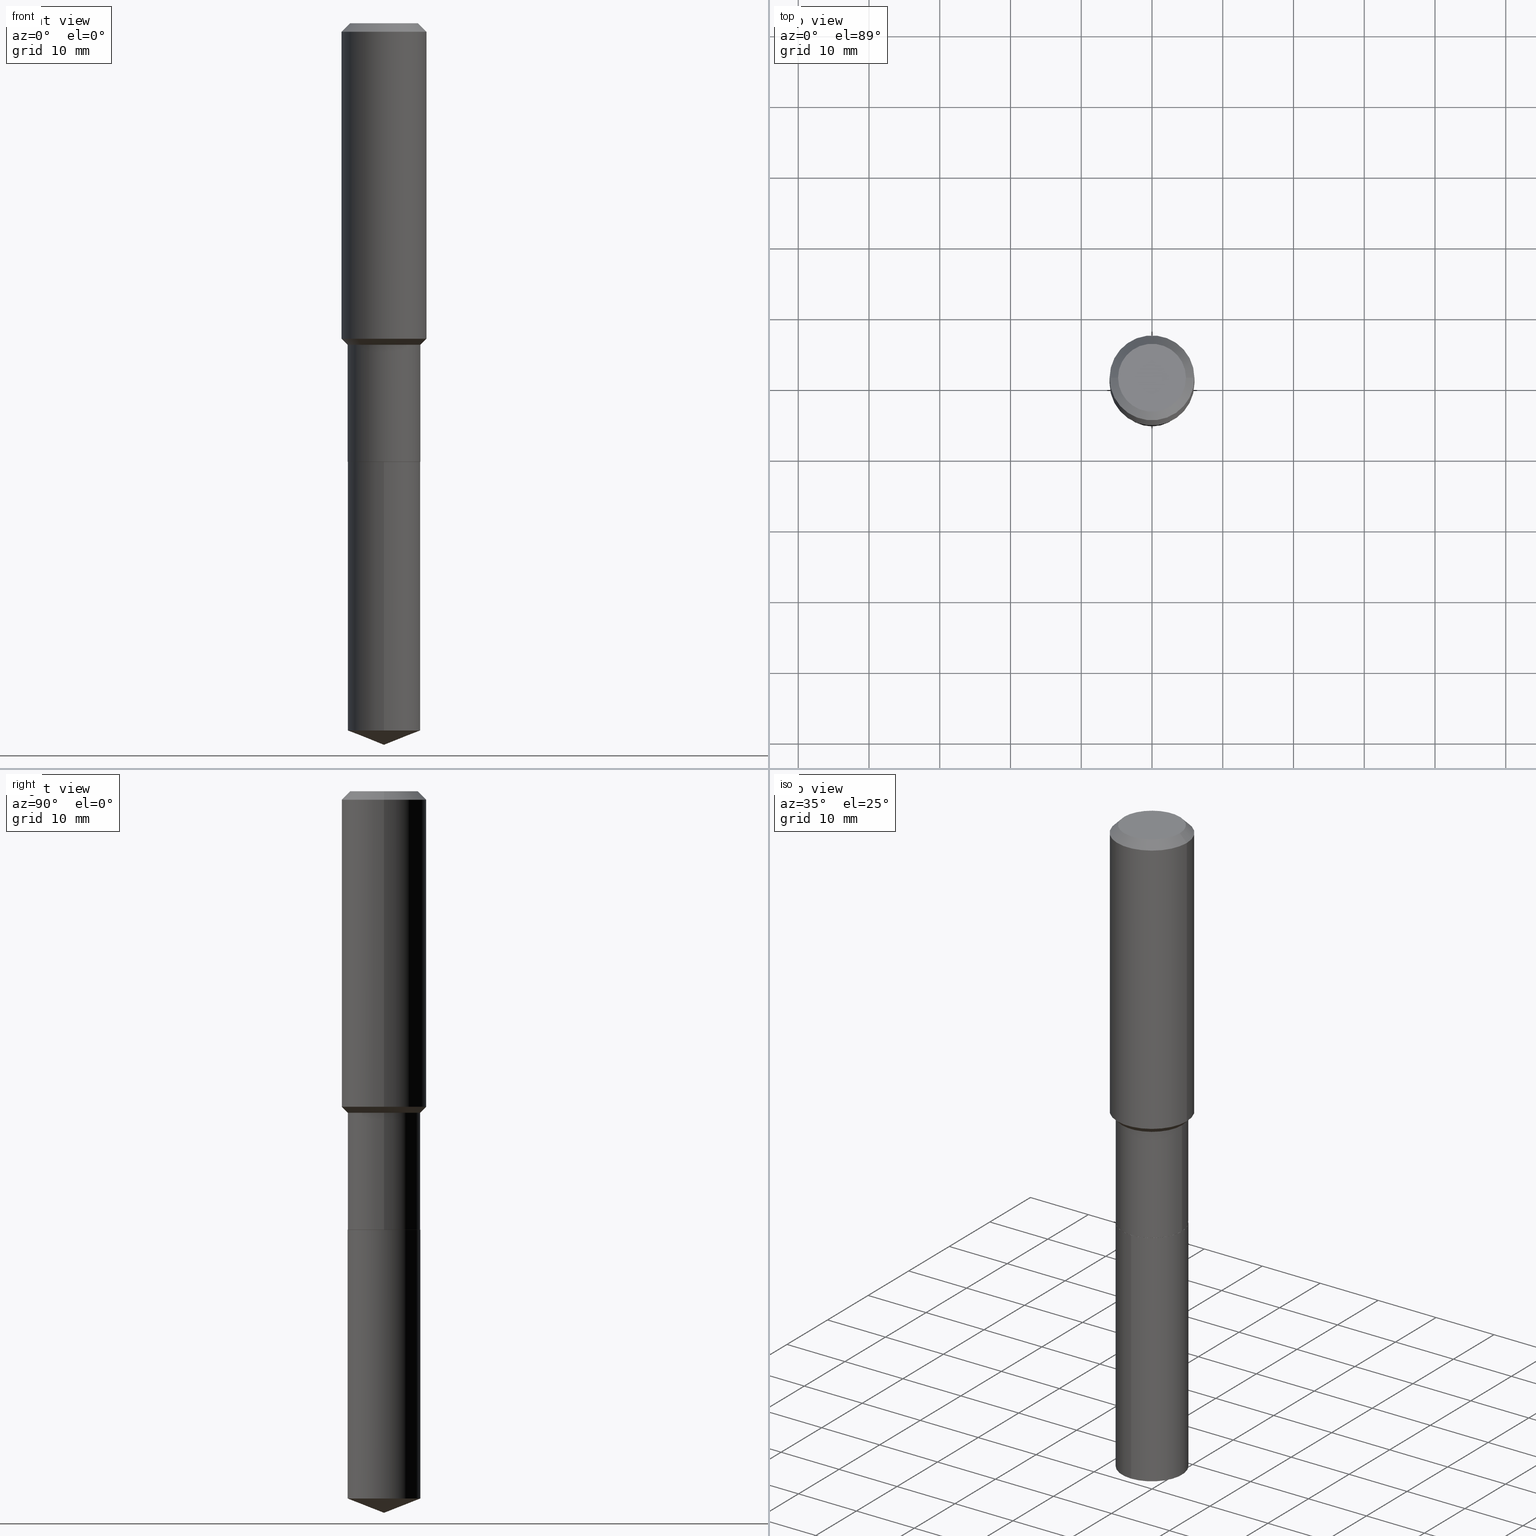
[diagram: canonical four-view strip — front | top / right | iso, engineering-drawing reading convention]
A machine part, canonical four-view strip (front | top / right | iso — engineering-drawing reading convention). The complete STEP part file that produces these views, byte-faithful:
ISO-10303-21;
HEADER;
FILE_DESCRIPTION (( 'STEP AP203' ),
    '1' );
FILE_NAME ('66473.STEP',
    '2024-04-24T23:21:21',
    ( '' ),
    ( '' ),
    'SwSTEP 2.0',
    'SolidWorks 2023',
    '' );
FILE_SCHEMA (( 'CONFIG_CONTROL_DESIGN' ));
ENDSEC;

DATA;
#1 = DIRECTION ( 'NONE',  ( -6.982962677686266711E-15, -1.000000000000000000, 3.498627837350051949E-15 ) ) ;
#2 = PRODUCT_DEFINITION ( 'UNKNOWN', '', #284, #251 ) ;
#3 = DIRECTION ( 'NONE',  ( -2.445399602320894408E-29, 3.491580442715579660E-15, 1.000000000000000000 ) ) ;
#4 = ORIENTED_EDGE ( 'NONE', *, *, #154, .F. ) ;
#5 = VERTEX_POINT ( 'NONE', #440 ) ;
#6 = APPROVAL_STATUS ( 'not_yet_approved' ) ;
#7 = LINE ( 'NONE', #458, #246 ) ;
#8 = ORIENTED_EDGE ( 'NONE', *, *, #303, .T. ) ;
#9 = ORIENTED_EDGE ( 'NONE', *, *, #351, .F. ) ;
#10 = CIRCLE ( 'NONE', #313, 0.2027500000000000135 ) ;
#11 = DIRECTION ( 'NONE',  ( -2.445468806185136597E-29, 3.491481338843145583E-15, 1.000000000000000000 ) ) ;
#12 = ORIENTED_EDGE ( 'NONE', *, *, #97, .F. ) ;
#13 = CARTESIAN_POINT ( 'NONE',  ( -9.427742298522546243E-47, 1.346031739168365344E-32, 3.855188123715862256E-18 ) ) ;
#14 = ORIENTED_EDGE ( 'NONE', *, *, #303, .F. ) ;
#15 = EDGE_CURVE ( 'NONE', #447, #43, #437, .T. ) ;
#16 = DIRECTION ( 'NONE',  ( -2.445399602320894408E-29, 3.491580442715579660E-15, 1.000000000000000000 ) ) ;
#17 = VERTEX_POINT ( 'NONE', #235 ) ;
#18 = CIRCLE ( 'NONE', #428, 0.2027500000000000135 ) ;
#19 = LOCAL_TIME ( 19, 21, 21.00000000000000000, #396 ) ;
#20 = CARTESIAN_POINT ( 'NONE',  ( 1.155239464041865506E-30, -1.649375784469511859E-16, -0.04724000000000028177 ) ) ;
#21 = PERSON_AND_ORGANIZATION ( #263, #125 ) ;
#22 = ORIENTED_EDGE ( 'NONE', *, *, #31, .F. ) ;
#23 = DATE_TIME_ROLE ( 'classification_date' ) ;
#24 = FACE_OUTER_BOUND ( 'NONE', #423, .T. ) ;
#25 = APPROVAL_STATUS ( 'not_yet_approved' ) ;
#26 = DIRECTION ( 'NONE',  ( -2.445468806185136597E-29, 3.491481338843145583E-15, 1.000000000000000000 ) ) ;
#27 = ADVANCED_FACE ( 'NONE', ( #205 ), #392, .T. ) ;
#28 = CARTESIAN_POINT ( 'NONE',  ( -1.415795682900794232E-15, -0.2027500000000137803, -3.935834651069069601 ) ) ;
#29 = CARTESIAN_POINT ( 'NONE',  ( 0.2362000000000001043, -1.649375784469496920E-15, 1.151752954443000508E-29 ) ) ;
#30 = APPLICATION_PROTOCOL_DEFINITION ( 'international standard', 'config_control_design', 1994, #383 ) ;
#31 = EDGE_CURVE ( 'NONE', #262, #224, #364, .T. ) ;
#32 = CARTESIAN_POINT ( 'NONE',  ( -4.713871149261273121E-47, 6.730158695841826722E-33, 1.927594061857931128E-18 ) ) ;
#33 = CIRCLE ( 'NONE', #373, 0.2027499999999999303 ) ;
#34 = DIRECTION ( 'NONE',  ( 1.000000000000000000, -6.982962677686266711E-15, 4.876176775795935793E-29 ) ) ;
#35 = CARTESIAN_POINT ( 'NONE',  ( 5.969144809017299038E-29, -8.522356799982232966E-15, -2.440900000000000070 ) ) ;
#36 = VERTEX_POINT ( 'NONE', #360 ) ;
#37 = CARTESIAN_POINT ( 'NONE',  ( 9.819991183040015308E-29, -1.402113958381295422E-14, -4.015699999999999825 ) ) ;
#38 = CONICAL_SURFACE ( 'NONE', #377, 0.2027499999999999303, 0.7853981633974498333 ) ;
#39 = DIRECTION ( 'NONE',  ( 1.000000000000000000, -6.982962677686266711E-15, 4.876176775795935793E-29 ) ) ;
#40 = CIRCLE ( 'NONE', #289, 0.2361999999999999933 ) ;
#41 = EDGE_LOOP ( 'NONE', ( #187, #389 ) ) ;
#42 = VECTOR ( 'NONE', #480, 39.37007874015748143 ) ;
#43 = VERTEX_POINT ( 'NONE', #134 ) ;
#44 = CC_DESIGN_DATE_AND_TIME_ASSIGNMENT ( #438, #23, ( #238 ) ) ;
#45 = CARTESIAN_POINT ( 'NONE',  ( 1.440625396753699464E-15, 0.2027499999999914648, -2.440900000000000514 ) ) ;
#46 = ORIENTED_EDGE ( 'NONE', *, *, #414, .T. ) ;
#47 = DIRECTION ( 'NONE',  ( -2.445468806185136597E-29, 3.491481338843145583E-15, 1.000000000000000000 ) ) ;
#48 = EDGE_CURVE ( 'NONE', #36, #5, #62, .T. ) ;
#49 = EDGE_LOOP ( 'NONE', ( #142, #79, #344, #181 ) ) ;
#50 = VECTOR ( 'NONE', #51, 39.37007874015748143 ) ;
#51 = DIRECTION ( 'NONE',  ( -2.445468806185136877E-29, 3.491481338843145188E-15, 1.000000000000000000 ) ) ;
#52 = ORIENTED_EDGE ( 'NONE', *, *, #222, .F. ) ;
#53 = PERSON_AND_ORGANIZATION ( #263, #125 ) ;
#54 = ORIENTED_EDGE ( 'NONE', *, *, #398, .T. ) ;
#55 = DIRECTION ( 'NONE',  ( -1.000000000000000000, 6.982962677686266711E-15, 0.000000000000000000 ) ) ;
#56 = CALENDAR_DATE ( 2024, 24, 4 ) ;
#57 = AXIS2_PLACEMENT_3D ( 'NONE', #13, #157, #304 ) ;
#58 = CARTESIAN_POINT ( 'NONE',  ( 4.376166428668302424E-29, -6.248005855859809764E-15, -1.789500000000000091 ) ) ;
#59 = PERSON_AND_ORGANIZATION_ROLE ( 'creator' ) ;
#60 = DIRECTION ( 'NONE',  ( 6.982962677686265922E-15, 1.000000000000000000, -3.491580442715579660E-15 ) ) ;
#61 = CARTESIAN_POINT ( 'NONE',  ( 5.969144809017299038E-29, -8.522356799982232966E-15, -2.440900000000000070 ) ) ;
#62 = LINE ( 'NONE', #391, #417 ) ;
#63 = AXIS2_PLACEMENT_3D ( 'NONE', #58, #229, #395 ) ;
#64 = CARTESIAN_POINT ( 'NONE',  ( -0.1889600000000000168, 1.401969416799070942E-15, 3.855188123706346622E-18 ) ) ;
#65 = VECTOR ( 'NONE', #481, 39.37007874015748143 ) ;
#66 = CARTESIAN_POINT ( 'NONE',  ( 4.376166428668302424E-29, -6.248005855859809764E-15, -1.789500000000000091 ) ) ;
#67 = APPROVAL ( #473, 'UNSPECIFIED' ) ;
#68 = DIRECTION ( 'NONE',  ( -2.445468806185136877E-29, 3.491481338843145188E-15, 1.000000000000000000 ) ) ;
#69 = EDGE_LOOP ( 'NONE', ( #326, #305, #465, #219 ) ) ;
#70 = ADVANCED_FACE ( 'NONE', ( #89 ), #308, .T. ) ;
#71 = DIRECTION ( 'NONE',  ( -2.445468806185136597E-29, 3.491481338843145583E-15, 1.000000000000000000 ) ) ;
#72 = APPROVAL ( #25, 'UNSPECIFIED' ) ;
#73 = AXIS2_PLACEMENT_3D ( 'NONE', #108, #327, #451 ) ;
#74 = CARTESIAN_POINT ( 'NONE',  ( 9.624857410237329995E-29, -1.374204139079284001E-14, -3.935834651069070045 ) ) ;
#75 = CARTESIAN_POINT ( 'NONE',  ( -0.2362000000000001043, 1.678301941865357380E-15, -1.161852468318209317E-29 ) ) ;
#76 = PLANE ( 'NONE',  #374 ) ;
#77 = ADVANCED_FACE ( 'NONE', ( #272 ), #123, .T. ) ;
#78 = VECTOR ( 'NONE', #87, 39.37007874015748143 ) ;
#79 = ORIENTED_EDGE ( 'NONE', *, *, #484, .T. ) ;
#80 = ADVANCED_FACE ( 'NONE', ( #276 ), #95, .F. ) ;
#81 = APPLICATION_CONTEXT ( 'configuration controlled 3d designs of mechanical parts and assemblies' ) ;
#82 = ORIENTED_EDGE ( 'NONE', *, *, #342, .F. ) ;
#83 = ORIENTED_EDGE ( 'NONE', *, *, #375, .F. ) ;
#84 = DIRECTION ( 'NONE',  ( 1.000000000000000000, -6.982962677686266711E-15, 0.000000000000000000 ) ) ;
#85 = ORIENTED_EDGE ( 'NONE', *, *, #355, .T. ) ;
#86 = VECTOR ( 'NONE', #441, 39.37007874015748143 ) ;
#87 = DIRECTION ( 'NONE',  ( -2.445399602320894689E-29, 3.491580442715579660E-15, 1.000000000000000000 ) ) ;
#88 = ORIENTED_EDGE ( 'NONE', *, *, #31, .T. ) ;
#89 = FACE_OUTER_BOUND ( 'NONE', #405, .T. ) ;
#90 = DIRECTION ( 'NONE',  ( 1.000000000000000000, -6.982962677686266711E-15, 4.876176775795935793E-29 ) ) ;
#91 = CONICAL_SURFACE ( 'NONE', #144, 0.2361999999999999933, 0.7853981633974452814 ) ;
#92 = AXIS2_PLACEMENT_3D ( 'NONE', #257, #11, #84 ) ;
#93 = LOCAL_TIME ( 19, 21, 21.00000000000000000, #170 ) ;
#94 = PERSON_AND_ORGANIZATION ( #263, #125 ) ;
#95 = PLANE ( 'NONE',  #471 ) ;
#96 = DIRECTION ( 'NONE',  ( 1.000000000000000000, -6.982962677686266711E-15, 0.000000000000000000 ) ) ;
#97 = EDGE_CURVE ( 'NONE', #323, #372, #130, .T. ) ;
#98 = FACE_OUTER_BOUND ( 'NONE', #49, .T. ) ;
#99 = CARTESIAN_POINT ( 'NONE',  ( 0.2361999999999999933, -1.785387205520586782E-15, -0.04724000000000028177 ) ) ;
#100 = AXIS2_PLACEMENT_3D ( 'NONE', #448, #3, #1 ) ;
#101 = PLANE ( 'NONE',  #231 ) ;
#102 = EDGE_LOOP ( 'NONE', ( #4, #104 ) ) ;
#103 = LINE ( 'NONE', #450, #478 ) ;
#104 = ORIENTED_EDGE ( 'NONE', *, *, #390, .F. ) ;
#105 = DIRECTION ( 'NONE',  ( 1.000000000000000000, -6.982962677686269866E-15, 0.000000000000000000 ) ) ;
#106 = CYLINDRICAL_SURFACE ( 'NONE', #114, 0.2027500000000000135 ) ;
#107 = ORIENTED_EDGE ( 'NONE', *, *, #97, .T. ) ;
#108 = CARTESIAN_POINT ( 'NONE',  ( -9.427742298522546243E-47, 1.346031739168365344E-32, 3.855188123715862256E-18 ) ) ;
#109 = ADVANCED_FACE ( 'NONE', ( #24 ), #208, .T. ) ;
#110 = ORIENTED_EDGE ( 'NONE', *, *, #431, .T. ) ;
#111 = LINE ( 'NONE', #261, #139 ) ;
#112 = EDGE_CURVE ( 'NONE', #194, #463, #402, .T. ) ;
#113 = ORIENTED_EDGE ( 'NONE', *, *, #300, .T. ) ;
#114 = AXIS2_PLACEMENT_3D ( 'NONE', #213, #249, #412 ) ;
#115 = ORIENTED_EDGE ( 'NONE', *, *, #182, .F. ) ;
#116 = PERSON_AND_ORGANIZATION ( #263, #125 ) ;
#117 = PRODUCT ( '66473', '66473', '', ( #361 ) ) ;
#118 = DIRECTION ( 'NONE',  ( -2.445468806185136597E-29, 3.491481338843145583E-15, 1.000000000000000000 ) ) ;
#119 = ORIENTED_EDGE ( 'NONE', *, *, #200, .T. ) ;
#120 = CC_DESIGN_PERSON_AND_ORGANIZATION_ASSIGNMENT ( #21, #296, ( #284 ) ) ;
#121 = ORIENTED_EDGE ( 'NONE', *, *, #286, .T. ) ;
#122 = CARTESIAN_POINT ( 'NONE',  ( -0.2027499999999999303, -4.807380459106207527E-15, -1.789500000000000091 ) ) ;
#123 = CONICAL_SURFACE ( 'NONE', #184, 0.2361999999999999933, 0.7853981633974452814 ) ;
#124 = EDGE_LOOP ( 'NONE', ( #113, #341, #330, #335 ) ) ;
#125 = ORGANIZATION ( 'UNSPECIFIED', 'UNSPECIFIED', '' ) ;
#126 = DIRECTION ( 'NONE',  ( 2.445468806185136597E-29, -3.491481338843145583E-15, -1.000000000000000000 ) ) ;
#127 = COORDINATED_UNIVERSAL_TIME_OFFSET ( 5, 0, .BEHIND. ) ;
#128 = CARTESIAN_POINT ( 'NONE',  ( 5.969144809017299038E-29, -8.522356799982232966E-15, -2.440900000000000070 ) ) ;
#129 = PERSON_AND_ORGANIZATION_ROLE ( 'classification_officer' ) ;
#130 = LINE ( 'NONE', #230, #239 ) ;
#131 = AXIS2_PLACEMENT_3D ( 'NONE', #320, #282, #445 ) ;
#132 = EDGE_CURVE ( 'NONE', #382, #447, #33, .T. ) ;
#133 = LENGTH_MEASURE_WITH_UNIT ( LENGTH_MEASURE( 0.02539999999999999897 ), #407 );
#134 = CARTESIAN_POINT ( 'NONE',  ( 0.2362000000000002153, -7.780591589545004150E-15, -1.756049999999999889 ) ) ;
#135 = DATE_AND_TIME ( #316, #93 ) ;
#136 = DIMENSIONAL_EXPONENTS ( 1.000000000000000000, 0.000000000000000000, 0.000000000000000000, 0.000000000000000000, 0.000000000000000000, 0.000000000000000000, 0.000000000000000000 ) ;
#137 = CARTESIAN_POINT ( 'NONE',  ( 5.969144809017299038E-29, -8.522356799982232966E-15, -2.440900000000000070 ) ) ;
#138 = CARTESIAN_POINT ( 'NONE',  ( 5.969144809017299038E-29, -8.522356799982232966E-15, -2.440900000000000070 ) ) ;
#139 = VECTOR ( 'NONE', #254, 39.37007874015748143 ) ;
#140 = CARTESIAN_POINT ( 'NONE',  ( 5.969144809017299038E-29, -8.522356799982232966E-15, -2.440900000000000070 ) ) ;
#141 = CARTESIAN_POINT ( 'NONE',  ( 4.376166428668302424E-29, -6.248005855859809764E-15, -1.789500000000000091 ) ) ;
#142 = ORIENTED_EDGE ( 'NONE', *, *, #431, .F. ) ;
#143 = LINE ( 'NONE', #75, #162 ) ;
#144 = AXIS2_PLACEMENT_3D ( 'NONE', #352, #126, #474 ) ;
#145 = ADVANCED_FACE ( 'NONE', ( #399 ), #38, .T. ) ;
#146 = AXIS2_PLACEMENT_3D ( 'NONE', #456, #340, #294 ) ;
#147 = LOCAL_TIME ( 19, 21, 21.00000000000000000, #127 ) ;
#148 = DIRECTION ( 'NONE',  ( 1.000000000000000000, -6.982962677686264344E-15, 0.000000000000000000 ) ) ;
#149 = EDGE_LOOP ( 'NONE', ( #421, #14, #121, #88 ) ) ;
#150 = SECURITY_CLASSIFICATION_LEVEL ( 'unclassified' ) ;
#151 = LINE ( 'NONE', #462, #202 ) ;
#152 = AXIS2_PLACEMENT_3D ( 'NONE', #140, #177, #319 ) ;
#153 = VERTEX_POINT ( 'NONE', #317 ) ;
#154 = EDGE_CURVE ( 'NONE', #194, #36, #306, .T. ) ;
#155 = CARTESIAN_POINT ( 'NONE',  ( 0.2027499999999999858, -1.415795682900890473E-15, 9.886448412926258951E-30 ) ) ;
#156 = ORIENTED_EDGE ( 'NONE', *, *, #384, .T. ) ;
#157 = DIRECTION ( 'NONE',  ( -2.445468806185136597E-29, 3.491481338843145583E-15, 1.000000000000000000 ) ) ;
#158 = ORIENTED_EDGE ( 'NONE', *, *, #112, .F. ) ;
#159 = ADVANCED_FACE ( 'NONE', ( #98 ), #91, .T. ) ;
#160 = LINE ( 'NONE', #99, #65 ) ;
#161 = AXIS2_PLACEMENT_3D ( 'NONE', #137, #472, #279 ) ;
#162 = VECTOR ( 'NONE', #68, 39.37007874015748143 ) ;
#163 = LOCAL_TIME ( 19, 21, 21.00000000000000000, #394 ) ;
#164 = APPROVAL_ROLE ( '' ) ;
#165 = DIRECTION ( 'NONE',  ( 0.7071067811865486830, -2.468850131082268893E-15, 0.7071067811865464625 ) ) ;
#166 = DATE_AND_TIME ( #185, #147 ) ;
#167 = CARTESIAN_POINT ( 'NONE',  ( 1.155239464041865506E-30, -1.649375784469511859E-16, -0.04724000000000028177 ) ) ;
#168 = SHAPE_DEFINITION_REPRESENTATION ( #207, #301 ) ;
#169 = CARTESIAN_POINT ( 'NONE',  ( 0.000000000000000000, 0.000000000000000000, 0.000000000000000000 ) ) ;
#170 = COORDINATED_UNIVERSAL_TIME_OFFSET ( 5, 0, .BEHIND. ) ;
#171 = DIRECTION ( 'NONE',  ( 1.000000000000000000, -6.982962677686269866E-15, 0.000000000000000000 ) ) ;
#172 = DIRECTION ( 'NONE',  ( -2.445468806185136597E-29, 3.491481338843145583E-15, 1.000000000000000000 ) ) ;
#173 =( CONVERSION_BASED_UNIT ( 'INCH', #133 ) LENGTH_UNIT ( ) NAMED_UNIT ( #136 ) );
#174 = ADVANCED_FACE ( 'NONE', ( #270 ), #433, .T. ) ;
#175 = CARTESIAN_POINT ( 'NONE',  ( -1.415795682900830717E-15, -0.2027500000000085345, -2.440899999999999181 ) ) ;
#176 = APPROVAL ( #6, 'UNSPECIFIED' ) ;
#177 = DIRECTION ( 'NONE',  ( -2.445399602320894408E-29, 3.491580442715579660E-15, 1.000000000000000000 ) ) ;
#178 = CARTESIAN_POINT ( 'NONE',  ( 1.155239464041865506E-30, -1.649375784469511859E-16, -0.04724000000000028177 ) ) ;
#179 = ORIENTED_EDGE ( 'NONE', *, *, #359, .F. ) ;
#180 = DIRECTION ( 'NONE',  ( -2.445468806185136597E-29, 3.491481338843145583E-15, 1.000000000000000000 ) ) ;
#181 = ORIENTED_EDGE ( 'NONE', *, *, #286, .F. ) ;
#182 = EDGE_CURVE ( 'NONE', #43, #224, #212, .T. ) ;
#183 = CIRCLE ( 'NONE', #479, 0.2027499999999999303 ) ;
#184 = AXIS2_PLACEMENT_3D ( 'NONE', #20, #210, #55 ) ;
#185 = CALENDAR_DATE ( 2024, 24, 4 ) ;
#186 = DIRECTION ( 'NONE',  ( 1.000000000000000000, -6.982962677686264344E-15, 0.000000000000000000 ) ) ;
#187 = ORIENTED_EDGE ( 'NONE', *, *, #278, .T. ) ;
#188 = APPROVAL_DATE_TIME ( #166, #67 ) ;
#189 = CARTESIAN_POINT ( 'NONE',  ( 0.000000000000000000, 0.000000000000000000, 0.000000000000000000 ) ) ;
#190 = ADVANCED_FACE ( 'NONE', ( #362 ), #460, .T. ) ;
#191 = ORIENTED_EDGE ( 'NONE', *, *, #300, .F. ) ;
#192 = CARTESIAN_POINT ( 'NONE',  ( 1.440625396753662585E-15, 0.2027499999999914648, -2.440900000000000514 ) ) ;
#193 = CIRCLE ( 'NONE', #152, 0.2027500000000000135 ) ;
#194 = VERTEX_POINT ( 'NONE', #215 ) ;
#195 = DIRECTION ( 'NONE',  ( 1.000000000000000000, -6.982962677686266711E-15, 0.000000000000000000 ) ) ;
#196 = ORIENTED_EDGE ( 'NONE', *, *, #267, .F. ) ;
#197 = APPROVAL_ROLE ( '' ) ;
#198 = ORIENTED_EDGE ( 'NONE', *, *, #359, .T. ) ;
#199 = APPROVAL_ROLE ( '' ) ;
#200 = EDGE_CURVE ( 'NONE', #463, #5, #247, .T. ) ;
#201 = DIRECTION ( 'NONE',  ( 6.611014441532053967E-15, 0.9304175679820254619, 0.3665012267242948041 ) ) ;
#202 = VECTOR ( 'NONE', #259, 39.37007874015748143 ) ;
#203 = DIRECTION ( 'NONE',  ( -6.982962677686266711E-15, -1.000000000000000000, 3.498627837350051949E-15 ) ) ;
#204 = CALENDAR_DATE ( 2024, 24, 4 ) ;
#205 = FACE_OUTER_BOUND ( 'NONE', #457, .T. ) ;
#206 =( NAMED_UNIT ( * ) SI_UNIT ( $, .STERADIAN. ) SOLID_ANGLE_UNIT ( ) );
#207 = PRODUCT_DEFINITION_SHAPE ( 'NONE', 'NONE',  #2 ) ;
#208 = CONICAL_SURFACE ( 'NONE', #469, 99.94676754583861111, 1.195550537616114850 ) ;
#209 = FACE_OUTER_BOUND ( 'NONE', #124, .T. ) ;
#210 = DIRECTION ( 'NONE',  ( 2.445468806185136597E-29, -3.491481338843145583E-15, -1.000000000000000000 ) ) ;
#211 = APPLICATION_PROTOCOL_DEFINITION ( 'international standard', 'config_control_design', 1994, #81 ) ;
#212 = LINE ( 'NONE', #29, #427 ) ;
#213 = CARTESIAN_POINT ( 'NONE',  ( 5.969144809017299038E-29, -8.522356799982232966E-15, -2.440900000000000070 ) ) ;
#214 = CIRCLE ( 'NONE', #57, 0.1889600000000000168 ) ;
#215 = CARTESIAN_POINT ( 'NONE',  ( 0.2022500000000000131, -9.934661001544280629E-15, -2.440900000000000070 ) ) ;
#216 = ADVANCED_FACE ( 'NONE', ( #287 ), #101, .F. ) ;
#217 = DIRECTION ( 'NONE',  ( 2.438088387897960049E-29, -3.491481338843145188E-15, -1.000000000000000000 ) ) ;
#218 = DIRECTION ( 'NONE',  ( -1.000000000000000000, 6.982962677686265922E-15, -4.876176775795935793E-29 ) ) ;
#219 = ORIENTED_EDGE ( 'NONE', *, *, #466, .F. ) ;
#220 = AXIS2_PLACEMENT_3D ( 'NONE', #167, #314, #476 ) ;
#221 = VERTEX_POINT ( 'NONE', #175 ) ;
#222 = EDGE_CURVE ( 'NONE', #224, #262, #40, .T. ) ;
#223 = DIRECTION ( 'NONE',  ( -2.445399602320894689E-29, 3.491580442715579660E-15, 1.000000000000000000 ) ) ;
#224 = VERTEX_POINT ( 'NONE', #368 ) ;
#225 = ORIENTED_EDGE ( 'NONE', *, *, #384, .F. ) ;
#226 = ORIENTED_EDGE ( 'NONE', *, *, #15, .F. ) ;
#227 = ORIENTED_EDGE ( 'NONE', *, *, #15, .T. ) ;
#228 = CC_DESIGN_PERSON_AND_ORGANIZATION_ASSIGNMENT ( #94, #356, ( #117 ) ) ;
#229 = DIRECTION ( 'NONE',  ( -2.445468806185136597E-29, 3.491481338843145583E-15, 1.000000000000000000 ) ) ;
#230 = CARTESIAN_POINT ( 'NONE',  ( 9.820331984917436461E-29, -1.402065577852850472E-14, -4.015699999999999825 ) ) ;
#231 = AXIS2_PLACEMENT_3D ( 'NONE', #32, #217, #218 ) ;
#232 = DATE_AND_TIME ( #204, #376 ) ;
#233 = DIRECTION ( 'NONE',  ( -2.445468806185136597E-29, 3.491481338843145583E-15, 1.000000000000000000 ) ) ;
#234 = DIRECTION ( 'NONE',  ( -2.445468806185136597E-29, 3.491481338843145583E-15, 1.000000000000000000 ) ) ;
#235 = CARTESIAN_POINT ( 'NONE',  ( 0.1889600000000000168, -1.540873453589747738E-15, 3.855188123725863225E-18 ) ) ;
#236 = ADVANCED_FACE ( 'NONE', ( #413 ), #76, .F. ) ;
#237 = APPROVAL_PERSON_ORGANIZATION ( #53, #72, #197 ) ;
#238 = SECURITY_CLASSIFICATION ( '', '', #150 ) ;
#239 = VECTOR ( 'NONE', #201, 39.37007874015748854 ) ;
#240 = DIRECTION ( 'NONE',  ( -2.445468806185136877E-29, 3.491481338843145188E-15, 1.000000000000000000 ) ) ;
#241 = ORIENTED_EDGE ( 'NONE', *, *, #154, .T. ) ;
#242 = PRODUCT_RELATED_PRODUCT_CATEGORY ( 'detail', '', ( #117 ) ) ;
#243 = DIRECTION ( 'NONE',  ( -6.982962677686265922E-15, -1.000000000000000000, 2.694794568349458162E-15 ) ) ;
#244 = ORIENTED_EDGE ( 'NONE', *, *, #132, .F. ) ;
#245 = FACE_OUTER_BOUND ( 'NONE', #69, .T. ) ;
#246 = VECTOR ( 'NONE', #223, 39.37007874015748143 ) ;
#247 = CIRCLE ( 'NONE', #411, 0.2027500000000000135 ) ;
#248 = CC_DESIGN_PERSON_AND_ORGANIZATION_ASSIGNMENT ( #461, #475, ( #284 ) ) ;
#249 = DIRECTION ( 'NONE',  ( -2.445399602320894408E-29, 3.491580442715579660E-15, 1.000000000000000000 ) ) ;
#250 = ORIENTED_EDGE ( 'NONE', *, *, #315, .T. ) ;
#251 = DESIGN_CONTEXT ( 'detailed design', #383, 'design' ) ;
#252 = DIRECTION ( 'NONE',  ( 1.000000000000000000, -6.982962677686266711E-15, 0.000000000000000000 ) ) ;
#253 = MANIFOLD_SOLID_BREP ( 'Body-Move/Copy2[2]', #486 ) ;
#254 = DIRECTION ( 'NONE',  ( -2.445468806185136877E-29, 3.491481338843145188E-15, 1.000000000000000000 ) ) ;
#255 = EDGE_LOOP ( 'NONE', ( #241, #293, #292, #158 ) ) ;
#256 = CONICAL_SURFACE ( 'NONE', #436, 0.2022500000000000131, 0.7853981633975507526 ) ;
#257 = CARTESIAN_POINT ( 'NONE',  ( 4.294365497101408691E-29, -6.131215805075506047E-15, -1.756049999999999889 ) ) ;
#258 = ORIENTED_EDGE ( 'NONE', *, *, #182, .T. ) ;
#259 = DIRECTION ( 'NONE',  ( -6.497071151882108003E-15, -0.9304175679820229083, 0.3665012267243014099 ) ) ;
#260 = EDGE_LOOP ( 'NONE', ( #82, #370, #85, #83 ) ) ;
#261 = CARTESIAN_POINT ( 'NONE',  ( -0.2027499999999999858, 1.440625396753603026E-15, -9.973140895491819537E-30 ) ) ;
#262 = VERTEX_POINT ( 'NONE', #410 ) ;
#263 = PERSON ( 'UNSPECIFIED', 'UNSPECIFIED', 'UNSPECIFIED', ('UNSPECIFIED'), ('UNSPECIFIED'), ('UNSPECIFIED') ) ;
#264 = AXIS2_PLACEMENT_3D ( 'NONE', #169, #442, #90 ) ;
#265 = CONICAL_SURFACE ( 'NONE', #283, 0.2022500000000000131, 0.7853981633975507526 ) ;
#266 = CARTESIAN_POINT ( 'NONE',  ( 5.969144809017299038E-29, -8.522356799982232966E-15, -2.440900000000000070 ) ) ;
#267 = EDGE_CURVE ( 'NONE', #153, #262, #143, .T. ) ;
#268 = CC_DESIGN_SECURITY_CLASSIFICATION ( #238, ( #284 ) ) ;
#269 = EDGE_LOOP ( 'NONE', ( #468, #449, #156, #244 ) ) ;
#270 = FACE_OUTER_BOUND ( 'NONE', #338, .T. ) ;
#271 = PERSON_AND_ORGANIZATION ( #263, #125 ) ;
#272 = FACE_OUTER_BOUND ( 'NONE', #149, .T. ) ;
#273 = DATE_AND_TIME ( #56, #19 ) ;
#274 = CARTESIAN_POINT ( 'NONE',  ( 0.2022500000000000131, -9.934661001544280629E-15, -2.440900000000000070 ) ) ;
#275 = CARTESIAN_POINT ( 'NONE',  ( 0.000000000000000000, 0.000000000000000000, 0.000000000000000000 ) ) ;
#276 = FACE_OUTER_BOUND ( 'NONE', #41, .T. ) ;
#277 = APPROVAL_DATE_TIME ( #135, #72 ) ;
#278 = EDGE_CURVE ( 'NONE', #221, #385, #193, .T. ) ;
#279 = DIRECTION ( 'NONE',  ( 1.000000000000000000, -6.982962677686264344E-15, 0.000000000000000000 ) ) ;
#280 =( NAMED_UNIT ( * ) PLANE_ANGLE_UNIT ( ) SI_UNIT ( $, .RADIAN. ) );
#281 = ADVANCED_FACE ( 'NONE', ( #363 ), #369, .T. ) ;
#282 = DIRECTION ( 'NONE',  ( -2.445468806185136597E-29, 3.491481338843145583E-15, 1.000000000000000000 ) ) ;
#283 = AXIS2_PLACEMENT_3D ( 'NONE', #138, #180, #148 ) ;
#284 = PRODUCT_DEFINITION_FORMATION_WITH_SPECIFIED_SOURCE ( 'ANY', '', #117, .NOT_KNOWN. ) ;
#285 = DIRECTION ( 'NONE',  ( -2.445468806185136597E-29, 3.491481338843145583E-15, 1.000000000000000000 ) ) ;
#286 = EDGE_CURVE ( 'NONE', #490, #262, #103, .T. ) ;
#287 = FACE_OUTER_BOUND ( 'NONE', #432, .T. ) ;
#288 = DIRECTION ( 'NONE',  ( -0.7071067811865453523, 2.468850131082234184E-15, -0.7071067811865496822 ) ) ;
#289 = AXIS2_PLACEMENT_3D ( 'NONE', #178, #324, #408 ) ;
#290 = CC_DESIGN_APPROVAL ( #67, ( #284 ) ) ;
#291 = LINE ( 'NONE', #192, #78 ) ;
#292 = ORIENTED_EDGE ( 'NONE', *, *, #200, .F. ) ;
#293 = ORIENTED_EDGE ( 'NONE', *, *, #48, .T. ) ;
#294 = DIRECTION ( 'NONE',  ( -6.982962677686265922E-15, -1.000000000000000000, 2.694794568349458162E-15 ) ) ;
#295 = EDGE_LOOP ( 'NONE', ( #302, #346, #227, #453 ) ) ;
#296 = PERSON_AND_ORGANIZATION_ROLE ( 'creator' ) ;
#297 = CIRCLE ( 'NONE', #146, 0.2027500000000000135 ) ;
#298 = LINE ( 'NONE', #155, #50 ) ;
#299 = EDGE_LOOP ( 'NONE', ( #12, #46, #9 ) ) ;
#300 = EDGE_CURVE ( 'NONE', #459, #372, #18, .T. ) ;
#301 = ADVANCED_BREP_SHAPE_REPRESENTATION ( '66473', ( #424, #253, #452 ), #386 ) ;
#302 = ORIENTED_EDGE ( 'NONE', *, *, #434, .F. ) ;
#303 = EDGE_CURVE ( 'NONE', #490, #17, #444, .T. ) ;
#304 = DIRECTION ( 'NONE',  ( 1.000000000000000000, -6.982962677686266711E-15, 4.876185090822587894E-29 ) ) ;
#305 = ORIENTED_EDGE ( 'NONE', *, *, #390, .T. ) ;
#306 = CIRCLE ( 'NONE', #161, 0.2022500000000000131 ) ;
#307 = AXIS2_PLACEMENT_3D ( 'NONE', #420, #378, #430 ) ;
#308 = CYLINDRICAL_SURFACE ( 'NONE', #264, 0.2362000000000001043 ) ;
#309 = DATE_TIME_ROLE ( 'creation_date' ) ;
#310 = CARTESIAN_POINT ( 'NONE',  ( 4.376166428668302424E-29, -6.248005855859809764E-15, -1.789500000000000091 ) ) ;
#311 = COORDINATED_UNIVERSAL_TIME_OFFSET ( 5, 0, .BEHIND. ) ;
#312 = DIRECTION ( 'NONE',  ( 1.000000000000000000, 0.000000000000000000, 0.000000000000000000 ) ) ;
#313 = AXIS2_PLACEMENT_3D ( 'NONE', #483, #234, #96 ) ;
#314 = DIRECTION ( 'NONE',  ( -2.445468806185136597E-29, 3.491481338843145583E-15, 1.000000000000000000 ) ) ;
#315 = EDGE_CURVE ( 'NONE', #447, #382, #183, .T. ) ;
#316 = CALENDAR_DATE ( 2024, 24, 4 ) ;
#317 = CARTESIAN_POINT ( 'NONE',  ( -0.2362000000000002153, -4.452913863210148076E-15, -1.756049999999999889 ) ) ;
#318 = ADVANCED_FACE ( 'NONE', ( #485 ), #106, .T. ) ;
#319 = DIRECTION ( 'NONE',  ( -6.982962677686265922E-15, -1.000000000000000000, 4.042191852524186848E-15 ) ) ;
#320 = CARTESIAN_POINT ( 'NONE',  ( 0.000000000000000000, 0.000000000000000000, 0.000000000000000000 ) ) ;
#321 = VECTOR ( 'NONE', #165, 39.37007874015748143 ) ;
#322 = AXIS2_PLACEMENT_3D ( 'NONE', #489, #285, #34 ) ;
#323 = VERTEX_POINT ( 'NONE', #37 ) ;
#324 = DIRECTION ( 'NONE',  ( -2.445468806185136597E-29, 3.491481338843145583E-15, 1.000000000000000000 ) ) ;
#325 = CC_DESIGN_PERSON_AND_ORGANIZATION_ASSIGNMENT ( #336, #59, ( #2 ) ) ;
#326 = ORIENTED_EDGE ( 'NONE', *, *, #48, .F. ) ;
#327 = DIRECTION ( 'NONE',  ( -2.445468806185136597E-29, 3.491481338843145583E-15, 1.000000000000000000 ) ) ;
#328 = ORIENTED_EDGE ( 'NONE', *, *, #267, .T. ) ;
#329 = CARTESIAN_POINT ( 'NONE',  ( 5.967922074614207358E-29, -8.520611059312812251E-15, -2.440399999999999903 ) ) ;
#330 = ORIENTED_EDGE ( 'NONE', *, *, #278, .F. ) ;
#331 = AXIS2_PLACEMENT_3D ( 'NONE', #61, #16, #400 ) ;
#332 = CARTESIAN_POINT ( 'NONE',  ( 1.440625396753699859E-15, 0.2027499999999863578, -3.935834651069070933 ) ) ;
#333 = CALENDAR_DATE ( 2024, 24, 4 ) ;
#334 = ADVANCED_FACE ( 'NONE', ( #245 ), #265, .T. ) ;
#335 = ORIENTED_EDGE ( 'NONE', *, *, #355, .F. ) ;
#336 = PERSON_AND_ORGANIZATION ( #263, #125 ) ;
#337 = DIRECTION ( 'NONE',  ( -2.445468806185136597E-29, 3.491481338843145583E-15, 1.000000000000000000 ) ) ;
#338 = EDGE_LOOP ( 'NONE', ( #198, #328, #52, #115 ) ) ;
#339 = CIRCLE ( 'NONE', #92, 0.2362000000000002153 ) ;
#340 = DIRECTION ( 'NONE',  ( -2.445399602320894408E-29, 3.491580442715579660E-15, 1.000000000000000000 ) ) ;
#341 = ORIENTED_EDGE ( 'NONE', *, *, #342, .T. ) ;
#342 = EDGE_CURVE ( 'NONE', #372, #385, #291, .T. ) ;
#343 = CYLINDRICAL_SURFACE ( 'NONE', #418, 0.2027499999999999858 ) ;
#344 = ORIENTED_EDGE ( 'NONE', *, *, #222, .T. ) ;
#345 = CARTESIAN_POINT ( 'NONE',  ( 0.2027500000000000135, -9.936406742213702921E-15, -2.440399999999999903 ) ) ;
#346 = ORIENTED_EDGE ( 'NONE', *, *, #132, .T. ) ;
#347 = EDGE_CURVE ( 'NONE', #153, #43, #401, .T. ) ;
#348 = CIRCLE ( 'NONE', #487, 0.2022500000000000131 ) ;
#349 = APPROVAL_PERSON_ORGANIZATION ( #116, #176, #164 ) ;
#350 = CARTESIAN_POINT ( 'NONE',  ( 0.2027499999999999303, -7.663801538760700434E-15, -1.789500000000000091 ) ) ;
#351 = EDGE_CURVE ( 'NONE', #372, #459, #297, .T. ) ;
#352 = CARTESIAN_POINT ( 'NONE',  ( 1.155239464041865506E-30, -1.649375784469511859E-16, -0.04724000000000028177 ) ) ;
#353 = APPROVAL_DATE_TIME ( #232, #176 ) ;
#354 = DIRECTION ( 'NONE',  ( -0.7071067811866199593, 7.493145998870616062E-15, 0.7071067811864750752 ) ) ;
#355 = EDGE_CURVE ( 'NONE', #459, #221, #7, .T. ) ;
#356 = PERSON_AND_ORGANIZATION_ROLE ( 'design_owner' ) ;
#357 = CARTESIAN_POINT ( 'NONE',  ( -8.645541479177115506E-28, 1.234428992761355637E-13, 35.35437874015748605 ) ) ;
#358 = APPROVAL_PERSON_ORGANIZATION ( #419, #67, #199 ) ;
#359 = EDGE_CURVE ( 'NONE', #43, #153, #339, .T. ) ;
#360 = CARTESIAN_POINT ( 'NONE',  ( -0.2022500000000000131, -7.082634889733319637E-15, -2.440900000000000070 ) ) ;
#361 = MECHANICAL_CONTEXT ( 'NONE', #81, 'mechanical' ) ;
#362 = FACE_OUTER_BOUND ( 'NONE', #299, .T. ) ;
#363 = FACE_OUTER_BOUND ( 'NONE', #269, .T. ) ;
#364 = CIRCLE ( 'NONE', #220, 0.2361999999999999933 ) ;
#365 = CIRCLE ( 'NONE', #307, 0.2027500000000000135 ) ;
#366 = CC_DESIGN_APPROVAL ( #72, ( #2 ) ) ;
#367 = UNCERTAINTY_MEASURE_WITH_UNIT (LENGTH_MEASURE( 1.000000000000000082E-05 ), #173, 'distance_accuracy_value', 'NONE');
#368 = CARTESIAN_POINT ( 'NONE',  ( 0.2361999999999999933, -1.814313362916447440E-15, -0.04724000000000028177 ) ) ;
#369 = CYLINDRICAL_SURFACE ( 'NONE', #322, 0.2027499999999999858 ) ;
#370 = ORIENTED_EDGE ( 'NONE', *, *, #351, .T. ) ;
#371 = FACE_OUTER_BOUND ( 'NONE', #255, .T. ) ;
#372 = VERTEX_POINT ( 'NONE', #332 ) ;
#373 = AXIS2_PLACEMENT_3D ( 'NONE', #310, #233, #393 ) ;
#374 = AXIS2_PLACEMENT_3D ( 'NONE', #35, #488, #404 ) ;
#375 = EDGE_CURVE ( 'NONE', #385, #221, #365, .T. ) ;
#376 = LOCAL_TIME ( 19, 21, 21.00000000000000000, #311 ) ;
#377 = AXIS2_PLACEMENT_3D ( 'NONE', #66, #26, #171 ) ;
#378 = DIRECTION ( 'NONE',  ( -2.445399602320894408E-29, 3.491580442715579660E-15, 1.000000000000000000 ) ) ;
#379 = ORIENTED_EDGE ( 'NONE', *, *, #347, .T. ) ;
#380 = ADVANCED_FACE ( 'NONE', ( #371 ), #256, .T. ) ;
#381 = CARTESIAN_POINT ( 'NONE',  ( -0.2027499999999999303, -5.943683060832708770E-15, -1.789500000000000091 ) ) ;
#382 = VERTEX_POINT ( 'NONE', #381 ) ;
#383 = APPLICATION_CONTEXT ( 'configuration controlled 3d designs of mechanical parts and assemblies' ) ;
#384 = EDGE_CURVE ( 'NONE', #463, #447, #298, .T. ) ;
#385 = VERTEX_POINT ( 'NONE', #45 ) ;
#386 =( GEOMETRIC_REPRESENTATION_CONTEXT ( 3 ) GLOBAL_UNCERTAINTY_ASSIGNED_CONTEXT ( ( #367 ) ) GLOBAL_UNIT_ASSIGNED_CONTEXT ( ( #173, #280, #206 ) ) REPRESENTATION_CONTEXT ( 'NONE', 'WORKASPACE' ) );
#387 = DIRECTION ( 'NONE',  ( 1.000000000000000000, -6.982962677686264344E-15, 0.000000000000000000 ) ) ;
#388 = ORIENTED_EDGE ( 'NONE', *, *, #315, .F. ) ;
#389 = ORIENTED_EDGE ( 'NONE', *, *, #375, .T. ) ;
#390 = EDGE_CURVE ( 'NONE', #36, #194, #348, .T. ) ;
#391 = CARTESIAN_POINT ( 'NONE',  ( -0.2022500000000000131, -7.085284116907430838E-15, -2.440900000000000070 ) ) ;
#392 = CONICAL_SURFACE ( 'NONE', #63, 0.2027499999999999303, 0.7853981633974498333 ) ;
#393 = DIRECTION ( 'NONE',  ( 1.000000000000000000, -6.982962677686269866E-15, 0.000000000000000000 ) ) ;
#394 = COORDINATED_UNIVERSAL_TIME_OFFSET ( 5, 0, .BEHIND. ) ;
#395 = DIRECTION ( 'NONE',  ( 1.000000000000000000, -6.982962677686269866E-15, 0.000000000000000000 ) ) ;
#396 = COORDINATED_UNIVERSAL_TIME_OFFSET ( 5, 0, .BEHIND. ) ;
#397 = CARTESIAN_POINT ( 'NONE',  ( 0.2027499999999999303, -7.663801538760700434E-15, -1.789500000000000091 ) ) ;
#398 = EDGE_CURVE ( 'NONE', #5, #382, #111, .T. ) ;
#399 = FACE_OUTER_BOUND ( 'NONE', #295, .T. ) ;
#400 = DIRECTION ( 'NONE',  ( -6.982962677686265922E-15, -1.000000000000000000, 4.042191852524186848E-15 ) ) ;
#401 = CIRCLE ( 'NONE', #470, 0.2362000000000002153 ) ;
#402 = LINE ( 'NONE', #274, #42 ) ;
#403 = DIRECTION ( 'NONE',  ( 0.000000000000000000, 0.000000000000000000, 1.000000000000000000 ) ) ;
#404 = DIRECTION ( 'NONE',  ( 1.000000000000000000, -6.982962677686265922E-15, 4.876176775795935793E-29 ) ) ;
#405 = EDGE_LOOP ( 'NONE', ( #196, #379, #258, #22 ) ) ;
#406 = ADVANCED_FACE ( 'NONE', ( #425 ), #343, .T. ) ;
#407 =( LENGTH_UNIT ( ) NAMED_UNIT ( * ) SI_UNIT ( $, .METRE. ) );
#408 = DIRECTION ( 'NONE',  ( 1.000000000000000000, -6.982962677686266711E-15, 0.000000000000000000 ) ) ;
#409 = CC_DESIGN_DATE_AND_TIME_ASSIGNMENT ( #273, #309, ( #2 ) ) ;
#410 = CARTESIAN_POINT ( 'NONE',  ( -0.2361999999999999933, -1.469774749895871101E-15, -0.04724000000000028177 ) ) ;
#411 = AXIS2_PLACEMENT_3D ( 'NONE', #329, #172, #252 ) ;
#412 = DIRECTION ( 'NONE',  ( -6.982962677686265922E-15, -1.000000000000000000, 4.042191852524186848E-15 ) ) ;
#413 = FACE_OUTER_BOUND ( 'NONE', #102, .T. ) ;
#414 = EDGE_CURVE ( 'NONE', #323, #459, #151, .T. ) ;
#415 = CARTESIAN_POINT ( 'NONE',  ( 5.969144809017299038E-29, -8.522356799982232966E-15, -2.440900000000000070 ) ) ;
#416 = EDGE_LOOP ( 'NONE', ( #119, #54, #388, #225 ) ) ;
#417 = VECTOR ( 'NONE', #354, 39.37007874015748143 ) ;
#418 = AXIS2_PLACEMENT_3D ( 'NONE', #189, #337, #39 ) ;
#419 = PERSON_AND_ORGANIZATION ( #263, #125 ) ;
#420 = CARTESIAN_POINT ( 'NONE',  ( 5.969144809017299038E-29, -8.522356799982232966E-15, -2.440900000000000070 ) ) ;
#421 = ORIENTED_EDGE ( 'NONE', *, *, #484, .F. ) ;
#422 = CARTESIAN_POINT ( 'NONE',  ( 4.294365497101408691E-29, -6.131215805075506047E-15, -1.756049999999999889 ) ) ;
#423 = EDGE_LOOP ( 'NONE', ( #426, #107, #191 ) ) ;
#424 = MANIFOLD_SOLID_BREP ( 'Body-Move/Copy2[1]', #446 ) ;
#425 = FACE_OUTER_BOUND ( 'NONE', #416, .T. ) ;
#426 = ORIENTED_EDGE ( 'NONE', *, *, #414, .F. ) ;
#427 = VECTOR ( 'NONE', #240, 39.37007874015748143 ) ;
#428 = AXIS2_PLACEMENT_3D ( 'NONE', #74, #454, #243 ) ;
#429 = CC_DESIGN_APPROVAL ( #176, ( #238 ) ) ;
#430 = DIRECTION ( 'NONE',  ( -6.982962677686265922E-15, -1.000000000000000000, 4.042191852524186848E-15 ) ) ;
#431 = EDGE_CURVE ( 'NONE', #17, #490, #214, .T. ) ;
#432 = EDGE_LOOP ( 'NONE', ( #8, #110 ) ) ;
#433 = CYLINDRICAL_SURFACE ( 'NONE', #131, 0.2362000000000001043 ) ;
#434 = EDGE_CURVE ( 'NONE', #382, #153, #467, .T. ) ;
#435 = DIRECTION ( 'NONE',  ( -2.445399602320894408E-29, 3.491580442715579660E-15, 1.000000000000000000 ) ) ;
#436 = AXIS2_PLACEMENT_3D ( 'NONE', #415, #118, #387 ) ;
#437 = LINE ( 'NONE', #350, #321 ) ;
#438 = DATE_AND_TIME ( #333, #163 ) ;
#439 = ADVANCED_FACE ( 'NONE', ( #209 ), #443, .T. ) ;
#440 = CARTESIAN_POINT ( 'NONE',  ( -0.2027500000000000135, -5.943683060832708770E-15, -2.440399999999999903 ) ) ;
#441 = DIRECTION ( 'NONE',  ( -0.7071067811865486830, 7.493145998870358893E-15, 0.7071067811865464625 ) ) ;
#442 = DIRECTION ( 'NONE',  ( -2.445468806185136597E-29, 3.491481338843145583E-15, 1.000000000000000000 ) ) ;
#443 = CYLINDRICAL_SURFACE ( 'NONE', #331, 0.2027500000000000135 ) ;
#444 = CIRCLE ( 'NONE', #73, 0.1889600000000000168 ) ;
#445 = DIRECTION ( 'NONE',  ( 1.000000000000000000, -6.982962677686266711E-15, 4.876176775795935793E-29 ) ) ;
#446 = CLOSED_SHELL ( 'NONE', ( #439, #109, #190, #318, #80 ) ) ;
#447 = VERTEX_POINT ( 'NONE', #397 ) ;
#448 = CARTESIAN_POINT ( 'NONE',  ( -8.645541479177115506E-28, 1.234428992761355637E-13, 35.35437874015748605 ) ) ;
#449 = ORIENTED_EDGE ( 'NONE', *, *, #466, .T. ) ;
#450 = CARTESIAN_POINT ( 'NONE',  ( -0.2361999999999999933, 1.484438206022545019E-15, -0.04724000000000028177 ) ) ;
#451 = DIRECTION ( 'NONE',  ( 1.000000000000000000, -6.982962677686266711E-15, 4.876185090822587894E-29 ) ) ;
#452 = AXIS2_PLACEMENT_3D ( 'NONE', #275, #403, #312 ) ;
#453 = ORIENTED_EDGE ( 'NONE', *, *, #347, .F. ) ;
#454 = DIRECTION ( 'NONE',  ( -2.445399602320894408E-29, 3.491580442715579660E-15, 1.000000000000000000 ) ) ;
#455 = ORIENTED_EDGE ( 'NONE', *, *, #434, .T. ) ;
#456 = CARTESIAN_POINT ( 'NONE',  ( 9.624857410237329995E-29, -1.374204139079284001E-14, -3.935834651069070045 ) ) ;
#457 = EDGE_LOOP ( 'NONE', ( #250, #455, #179, #226 ) ) ;
#458 = CARTESIAN_POINT ( 'NONE',  ( -1.415795682900830717E-15, -0.2027500000000085345, -2.440899999999999181 ) ) ;
#459 = VERTEX_POINT ( 'NONE', #28 ) ;
#460 = CONICAL_SURFACE ( 'NONE', #100, 99.94676754583861111, 1.195550537616114850 ) ;
#461 = PERSON_AND_ORGANIZATION ( #263, #125 ) ;
#462 = CARTESIAN_POINT ( 'NONE',  ( 9.819991183040015308E-29, -1.402113958381295106E-14, -4.015699999999999825 ) ) ;
#463 = VERTEX_POINT ( 'NONE', #345 ) ;
#464 = DIRECTION ( 'NONE',  ( -2.445468806185136597E-29, 3.491481338843145583E-15, 1.000000000000000000 ) ) ;
#465 = ORIENTED_EDGE ( 'NONE', *, *, #112, .T. ) ;
#466 = EDGE_CURVE ( 'NONE', #5, #463, #10, .T. ) ;
#467 = LINE ( 'NONE', #122, #86 ) ;
#468 = ORIENTED_EDGE ( 'NONE', *, *, #398, .F. ) ;
#469 = AXIS2_PLACEMENT_3D ( 'NONE', #357, #435, #203 ) ;
#470 = AXIS2_PLACEMENT_3D ( 'NONE', #422, #47, #195 ) ;
#471 = AXIS2_PLACEMENT_3D ( 'NONE', #128, #482, #60 ) ;
#472 = DIRECTION ( 'NONE',  ( -2.445468806185136597E-29, 3.491481338843145583E-15, 1.000000000000000000 ) ) ;
#473 = APPROVAL_STATUS ( 'not_yet_approved' ) ;
#474 = DIRECTION ( 'NONE',  ( -1.000000000000000000, 6.982962677686266711E-15, 0.000000000000000000 ) ) ;
#475 = PERSON_AND_ORGANIZATION_ROLE ( 'design_supplier' ) ;
#476 = DIRECTION ( 'NONE',  ( 1.000000000000000000, -6.982962677686266711E-15, 0.000000000000000000 ) ) ;
#477 = CC_DESIGN_PERSON_AND_ORGANIZATION_ASSIGNMENT ( #271, #129, ( #238 ) ) ;
#478 = VECTOR ( 'NONE', #288, 39.37007874015748143 ) ;
#479 = AXIS2_PLACEMENT_3D ( 'NONE', #141, #71, #105 ) ;
#480 = DIRECTION ( 'NONE',  ( 0.7071067811866199593, -2.468850131083015945E-15, 0.7071067811864750752 ) ) ;
#481 = DIRECTION ( 'NONE',  ( 0.7071067811865453523, -7.319954787623248157E-15, -0.7071067811865496822 ) ) ;
#482 = DIRECTION ( 'NONE',  ( 2.445399602320894128E-29, -3.491580442715579660E-15, -1.000000000000000000 ) ) ;
#483 = CARTESIAN_POINT ( 'NONE',  ( 5.967922074614207358E-29, -8.520611059312812251E-15, -2.440399999999999903 ) ) ;
#484 = EDGE_CURVE ( 'NONE', #17, #224, #160, .T. ) ;
#485 = FACE_OUTER_BOUND ( 'NONE', #260, .T. ) ;
#486 = CLOSED_SHELL ( 'NONE', ( #380, #159, #174, #27, #406, #281, #145, #70, #77, #216, #236, #334 ) ) ;
#487 = AXIS2_PLACEMENT_3D ( 'NONE', #266, #464, #186 ) ;
#488 = DIRECTION ( 'NONE',  ( -2.438088387897960049E-29, 3.491481338843145188E-15, 1.000000000000000000 ) ) ;
#489 = CARTESIAN_POINT ( 'NONE',  ( 0.000000000000000000, 0.000000000000000000, 0.000000000000000000 ) ) ;
#490 = VERTEX_POINT ( 'NONE', #64 ) ;
ENDSEC;
END-ISO-10303-21;
